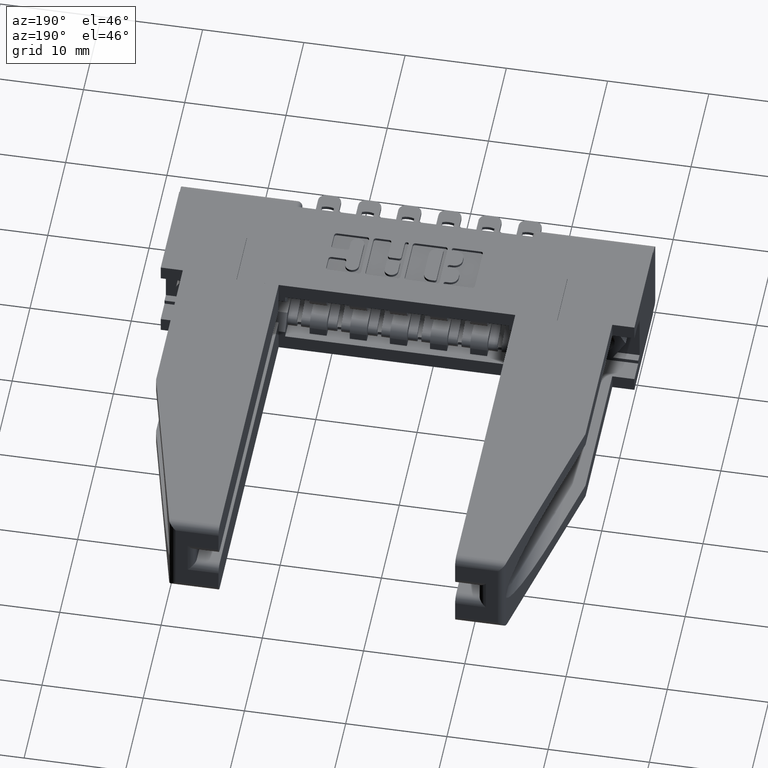
[diagram: clean part render]
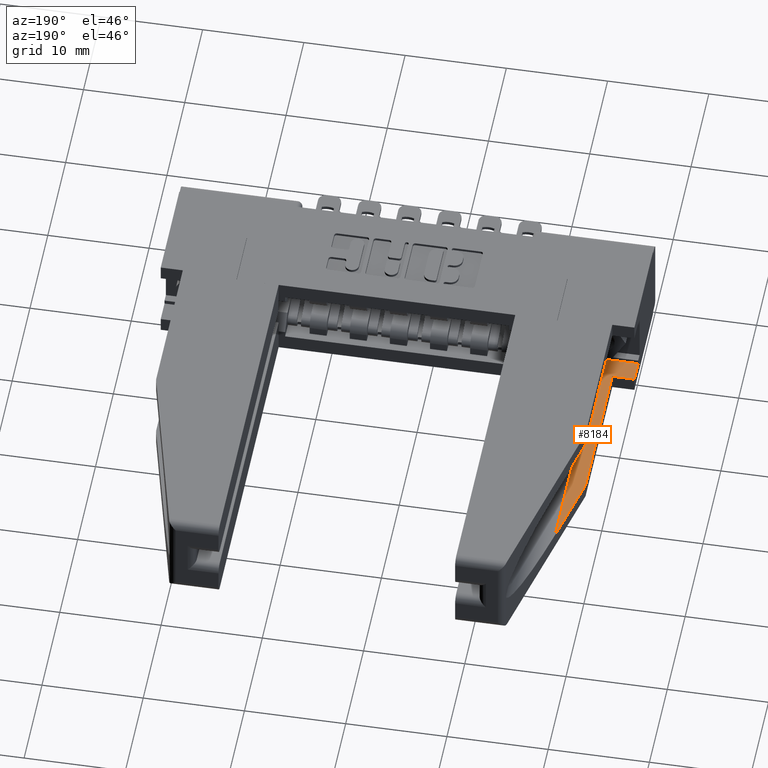
[diagram: same view with one face highlighted and labeled with its STEP entity id]
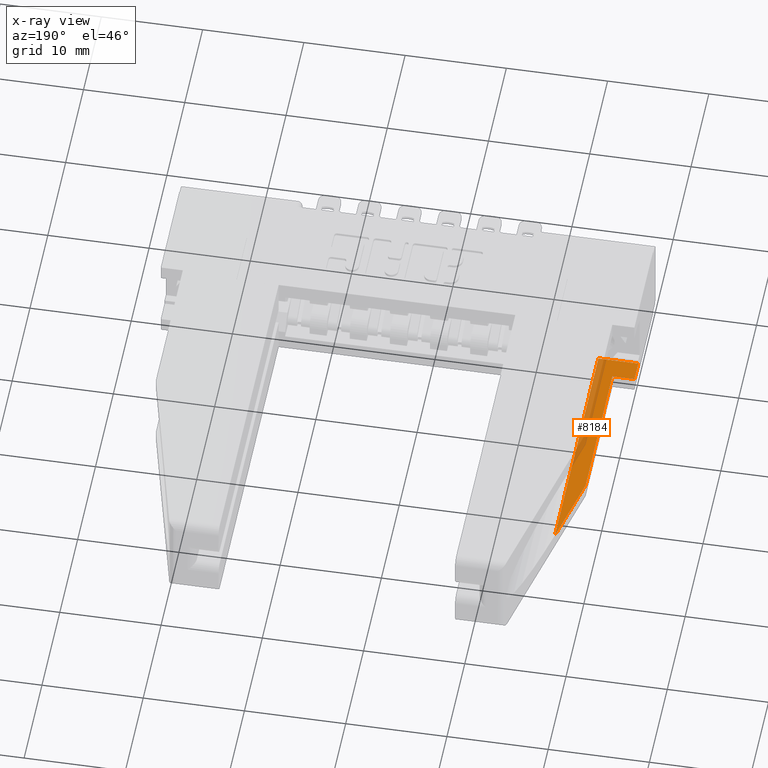
[diagram: x-ray of the same camera — body ghosted, the highlighted face saturated]
A machine part, auxiliary view. The second image highlights one B-rep face of the part: STEP entity #8184.
The next image is the same camera in x-ray: the body ghosted, the highlighted face saturated — about 26% of this face is hidden behind the body in this view.
In plain terms, the highlighted planar face has unit normal (0, -0, -1).
Its self-contained STEP definition (entity closure, byte-faithful):
#93 = FACE_OUTER_BOUND ( 'NONE', #7524, .T. ) ;
#161 = LINE ( 'NONE', #10610, #9420 ) ;
#331 = LINE ( 'NONE', #9062, #10338 ) ;
#597 = DIRECTION ( 'NONE',  ( 4.211209965453280200E-016, 1.000000000000000000, 1.690917325168900100E-017 ) ) ;
#1309 = EDGE_CURVE ( 'NONE', #1538, #10528, #7996, .T. ) ;
#1469 = CARTESIAN_POINT ( 'NONE',  ( 0.0000000000000000000, 0.2099999999999999100, -0.2839999999999999700 ) ) ;
#1538 = VERTEX_POINT ( 'NONE', #4783 ) ;
#1719 = EDGE_CURVE ( 'NONE', #7004, #6549, #161, .T. ) ;
#1893 = CARTESIAN_POINT ( 'NONE',  ( 0.1549999999999998600, 1.079729729729725700, -0.2839999999999998100 ) ) ;
#2456 = ORIENTED_EDGE ( 'NONE', *, *, #3828, .T. ) ;
#2526 = CARTESIAN_POINT ( 'NONE',  ( 0.08600000000000011800, 0.7999999999999976000, -0.2840000000000000900 ) ) ;
#2564 = DIRECTION ( 'NONE',  ( -4.500600642748225000E-016, -1.000000000000000000, -1.690917325168896400E-017 ) ) ;
#2679 = ORIENTED_EDGE ( 'NONE', *, *, #3245, .T. ) ;
#2873 = LINE ( 'NONE', #1469, #5914 ) ;
#3245 = EDGE_CURVE ( 'NONE', #4101, #7004, #7802, .T. ) ;
#3519 = CARTESIAN_POINT ( 'NONE',  ( 0.0000000000000000000, -0.3075443462566648200, -0.2839999999999998100 ) ) ;
#3626 = DIRECTION ( 'NONE',  ( 1.000000000000000000, 4.211209965453250600E-016, 2.218671295934087800E-031 ) ) ;
#3828 = EDGE_CURVE ( 'NONE', #7875, #10528, #2873, .T. ) ;
#4101 = VERTEX_POINT ( 'NONE', #4484 ) ;
#4277 = ORIENTED_EDGE ( 'NONE', *, *, #1719, .T. ) ;
#4287 = CARTESIAN_POINT ( 'NONE',  ( 0.0000000000000000000, 0.2099999999999999100, -0.2839999999999999700 ) ) ;
#4484 = CARTESIAN_POINT ( 'NONE',  ( 0.1549999999999998600, 0.1259999999999999500, -0.2839999999999998100 ) ) ;
#4783 = CARTESIAN_POINT ( 'NONE',  ( 0.0000000000000000000, 0.1259999999999999500, -0.2839999999999999200 ) ) ;
#5140 = ORIENTED_EDGE ( 'NONE', *, *, #10056, .T. ) ;
#5315 = CARTESIAN_POINT ( 'NONE',  ( 0.1549999999999998600, -0.3075443462566648200, -0.2839999999999999700 ) ) ;
#5470 = CARTESIAN_POINT ( 'NONE',  ( -0.2220049579111977000, -0.3075443462566648200, -0.2840000000000000900 ) ) ;
#5618 = VECTOR ( 'NONE', #8993, 39.37007874015748100 ) ;
#5738 = AXIS2_PLACEMENT_3D ( 'NONE', #5470, #9188, #8238 ) ;
#5854 = LINE ( 'NONE', #2526, #11501 ) ;
#5914 = VECTOR ( 'NONE', #5997, 39.37007874015748100 ) ;
#5997 = DIRECTION ( 'NONE',  ( -1.000000000000000000, -4.211209965453250600E-016, -2.218671295934087800E-031 ) ) ;
#5999 = DIRECTION ( 'NONE',  ( -0.2394884713086047100, -0.9708992080078484600, -1.641710291813239300E-017 ) ) ;
#6362 = ORIENTED_EDGE ( 'NONE', *, *, #1309, .F. ) ;
#6549 = VERTEX_POINT ( 'NONE', #7451 ) ;
#7004 = VERTEX_POINT ( 'NONE', #1893 ) ;
#7451 = CARTESIAN_POINT ( 'NONE',  ( 0.08600000000000011800, 0.7999999999999976000, -0.2840000000000000900 ) ) ;
#7524 = EDGE_LOOP ( 'NONE', ( #2456, #6362, #5140, #2679, #4277, #9110 ) ) ;
#7802 = LINE ( 'NONE', #5315, #5618 ) ;
#7875 = VERTEX_POINT ( 'NONE', #11490 ) ;
#7996 = LINE ( 'NONE', #3519, #10183 ) ;
#8184 = ADVANCED_FACE ( 'NONE', ( #93 ), #10155, .F. ) ;
#8238 = DIRECTION ( 'NONE',  ( -1.000000000000000000, -4.211209965453250600E-016, -2.218671295934087800E-031 ) ) ;
#8993 = DIRECTION ( 'NONE',  ( 4.211209965453280200E-016, 1.000000000000000000, 1.690917325168900100E-017 ) ) ;
#9062 = CARTESIAN_POINT ( 'NONE',  ( -0.2220049579111977000, 0.1259999999999998100, -0.2839999999999998100 ) ) ;
#9110 = ORIENTED_EDGE ( 'NONE', *, *, #11212, .T. ) ;
#9188 = DIRECTION ( 'NONE',  ( 2.289879374839175700E-031, -1.690917325168891800E-017, -1.000000000000000000 ) ) ;
#9420 = VECTOR ( 'NONE', #5999, 39.37007874015748100 ) ;
#10056 = EDGE_CURVE ( 'NONE', #1538, #4101, #331, .T. ) ;
#10155 = PLANE ( 'NONE',  #5738 ) ;
#10183 = VECTOR ( 'NONE', #597, 39.37007874015748100 ) ;
#10338 = VECTOR ( 'NONE', #3626, 39.37007874015748100 ) ;
#10528 = VERTEX_POINT ( 'NONE', #4287 ) ;
#10610 = CARTESIAN_POINT ( 'NONE',  ( 0.2710000000000004600, 1.549999999999998700, -0.2839999999999998100 ) ) ;
#11212 = EDGE_CURVE ( 'NONE', #6549, #7875, #5854, .T. ) ;
#11490 = CARTESIAN_POINT ( 'NONE',  ( 0.08600000000000011800, 0.2099999999999999100, -0.2839999999999998100 ) ) ;
#11501 = VECTOR ( 'NONE', #2564, 39.37007874015748100 ) ;